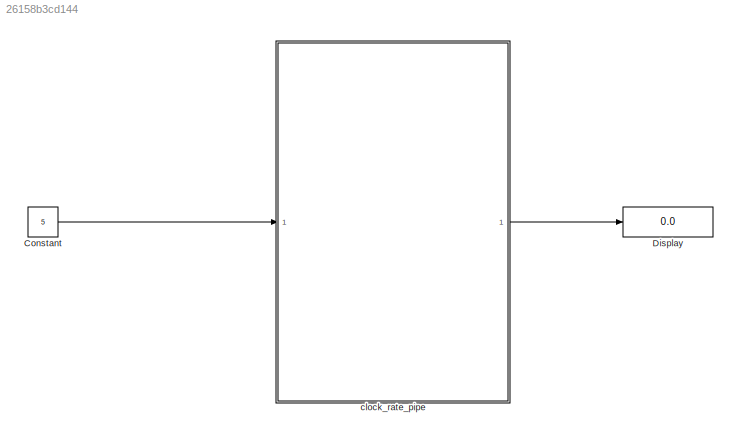
MODEL slx_26158b3cd144
KIND model
CONFIG AbsTol = auto
CONFIG EnableMultiTasking = off
CONFIG FixedStep = auto
CONFIG MaxStep = auto
CONFIG MinStep = auto
CONFIG RelTol = 1e-3
CONFIG SampleTimeConstraint = Unconstrained
CONFIG SolverName = FixedStepDiscrete
CONFIG StartTime = 0.0
CONFIG StopTime = 100/100e6
BLOCK [Constant] Constant
  OutDataTypeStr = uint32
  SampleTime = 1/100e6
  Value = 5
BLOCK [Display] Display
  Decimation = 1
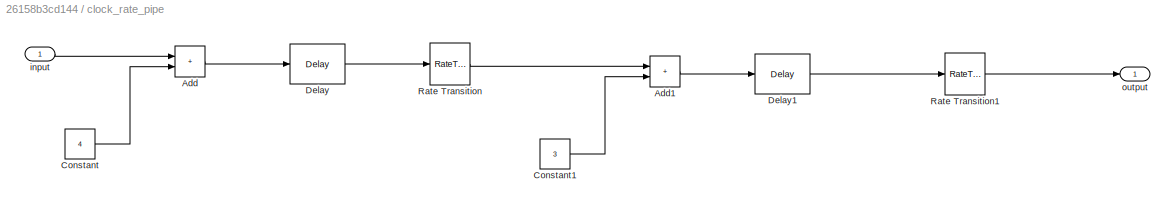
BLOCK [SubSystem] clock_rate_pipe
  TreatAsAtomicUnit = on
BLOCK [Sum] clock_rate_pipe/Add
  IconShape = rectangular
BLOCK [Sum] clock_rate_pipe/Add1
  IconShape = rectangular
BLOCK [Constant] clock_rate_pipe/Constant
  OutDataTypeStr = uint32
  SampleTime = 1/100e6
  Value = 4
BLOCK [Constant] clock_rate_pipe/Constant1
  OutDataTypeStr = uint32
  SampleTime = 1/50e6
  Value = 3
BLOCK [Delay] clock_rate_pipe/Delay
  DelayLength = 1
  InitialCondition = 0
  InputPortMap = u0
  UseCircularBuffer = on
  UserDataPersistent = on
BLOCK [Delay] clock_rate_pipe/Delay1
  DelayLength = 1
  InitialCondition = 0
  InputPortMap = u0
  UseCircularBuffer = on
  UserDataPersistent = on
BLOCK [RateTransition] clock_rate_pipe/Rate Transition
  OutPortSampleTime = 1/50e6
BLOCK [RateTransition] clock_rate_pipe/Rate Transition1
  OutPortSampleTime = 1/100e6
BLOCK [Inport] clock_rate_pipe/input
BLOCK [Outport] clock_rate_pipe/output
LINE Constant:1 -> clock_rate_pipe:1
LINE clock_rate_pipe/Add1:1 -> clock_rate_pipe/Delay1:1
LINE clock_rate_pipe/Add:1 -> clock_rate_pipe/Delay:1
LINE clock_rate_pipe/Constant1:1 -> clock_rate_pipe/Add1:2
LINE clock_rate_pipe/Constant:1 -> clock_rate_pipe/Add:2
LINE clock_rate_pipe/Delay1:1 -> clock_rate_pipe/Rate Transition1:1
LINE clock_rate_pipe/Delay:1 -> clock_rate_pipe/Rate Transition:1
LINE clock_rate_pipe/Rate Transition1:1 -> clock_rate_pipe/output:1
LINE clock_rate_pipe/Rate Transition:1 -> clock_rate_pipe/Add1:1
LINE clock_rate_pipe/input:1 -> clock_rate_pipe/Add:1
LINE clock_rate_pipe:1 -> Display:1
